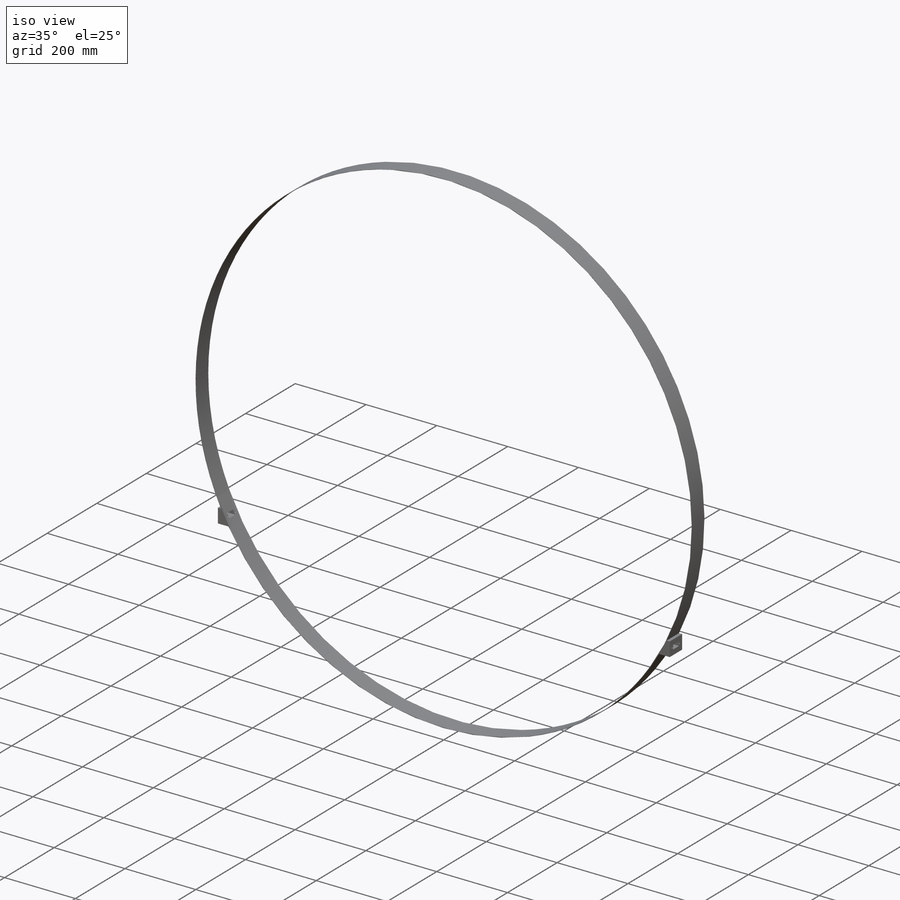
[diagram: iso view]
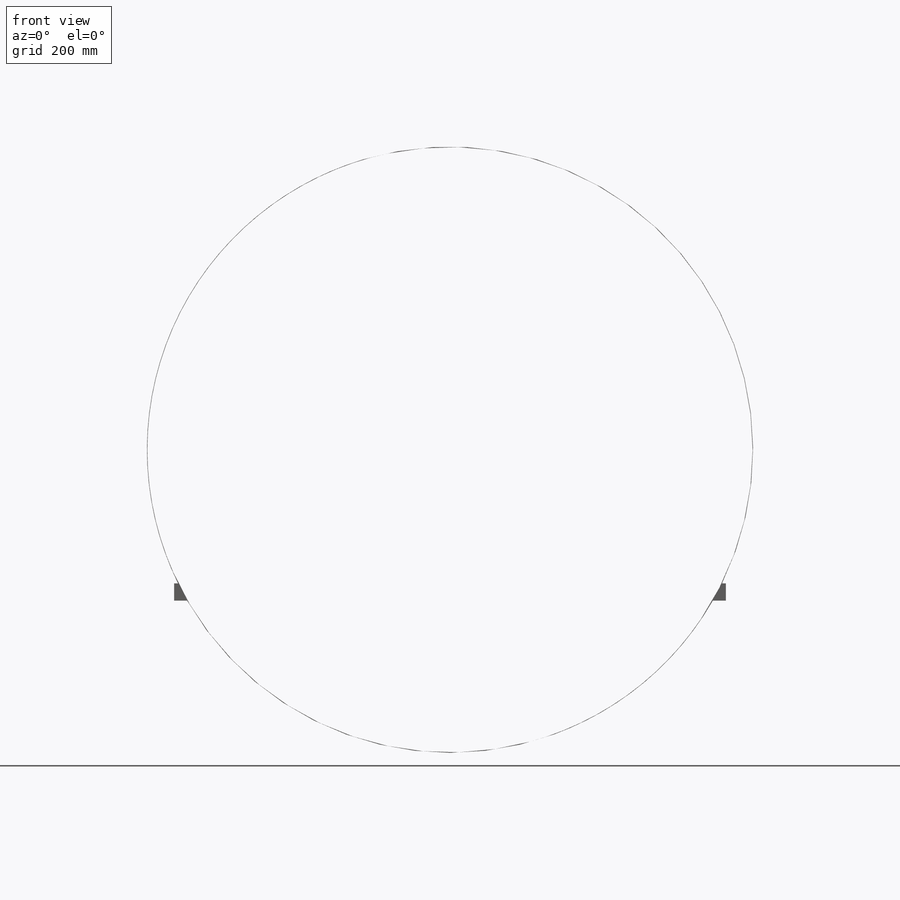
[diagram: front view]
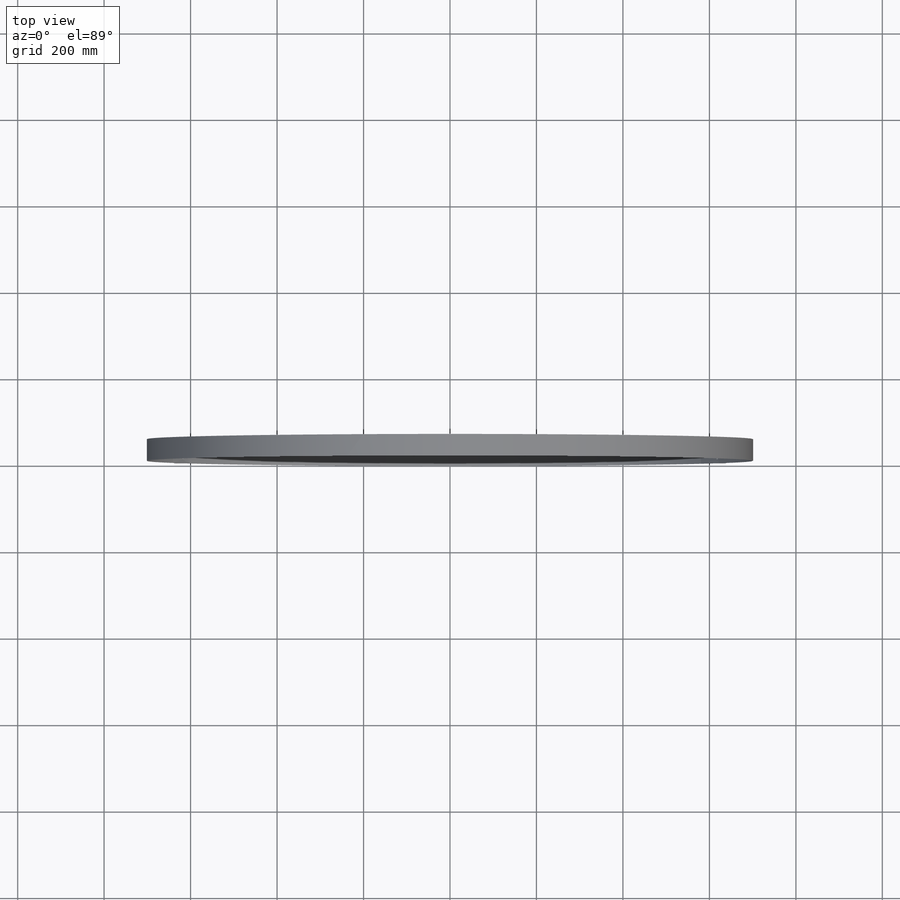
[diagram: top view]
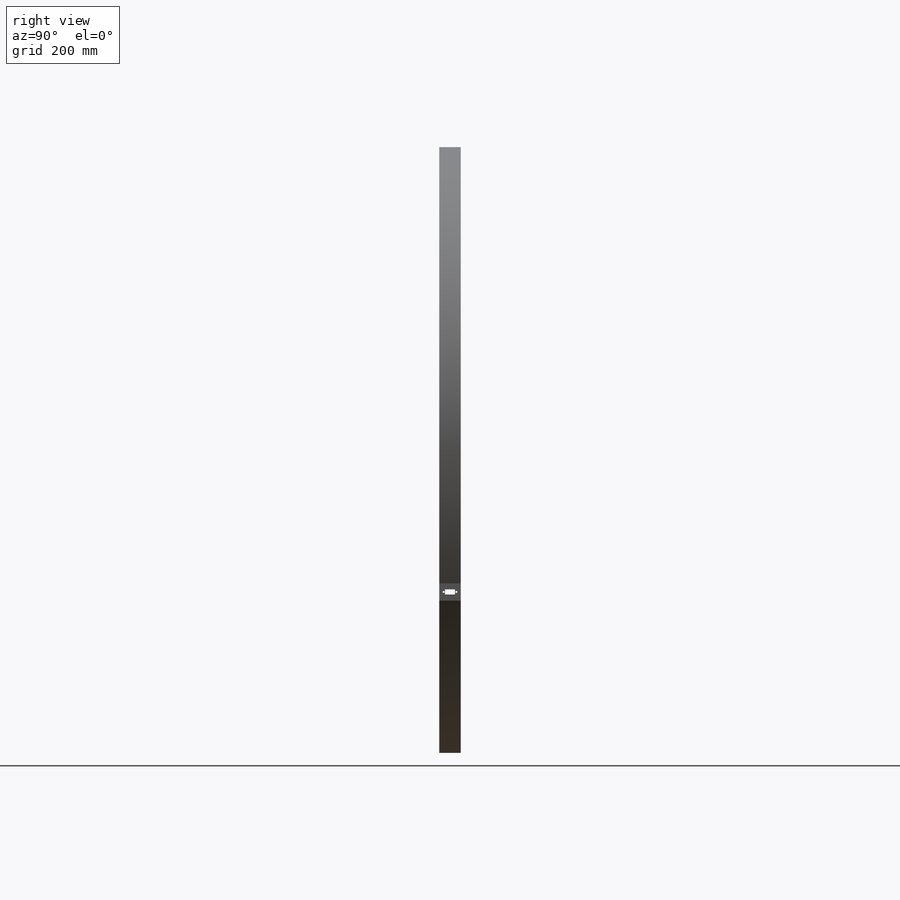
[diagram: right view]
SOLIDWORKS PART (.sldprt)
format: sldprt  version: not decoded by parser v0  size: 220,672 bytes
history: native  units: mm
features: sketch x3, extrude x2, material x1, mirror x1, cut_extrude x1 (+16 scaffold rows collapsed)
feature tree (24):
  scaffold x16  (default folders/planes/origin — collapsed)
  material  "Balsa"
  sketch  "Sketch1"  dims[D1=1400.0mm D2=1402.0mm]
  extrude  "Extrude1"  Depth=50mm
  sketch  "Sketch4"  dims[D1=40.0mm D2=30.0mm D3=329.0mm]
  extrude  "Extrude4"  Depth=50mm
  mirror  "Mirror1"
  sketch  "Sketch5"  dims[D1=4.5mm D2=4.5mm D5=1.0mm D3=29.4mm D4=6.0mm D6=25.0mm D7=21.0mm D8=12.0mm D9=~20.16011mm]
  cut_extrude  "Extrude5"  Depth=1500mm
decode coverage: 6 of 7 modeling features carry decoded parameters
note: ~ marks probable driven/reference dimensions
note: suppression state not decoded; provenance and decode notes live in map.json
